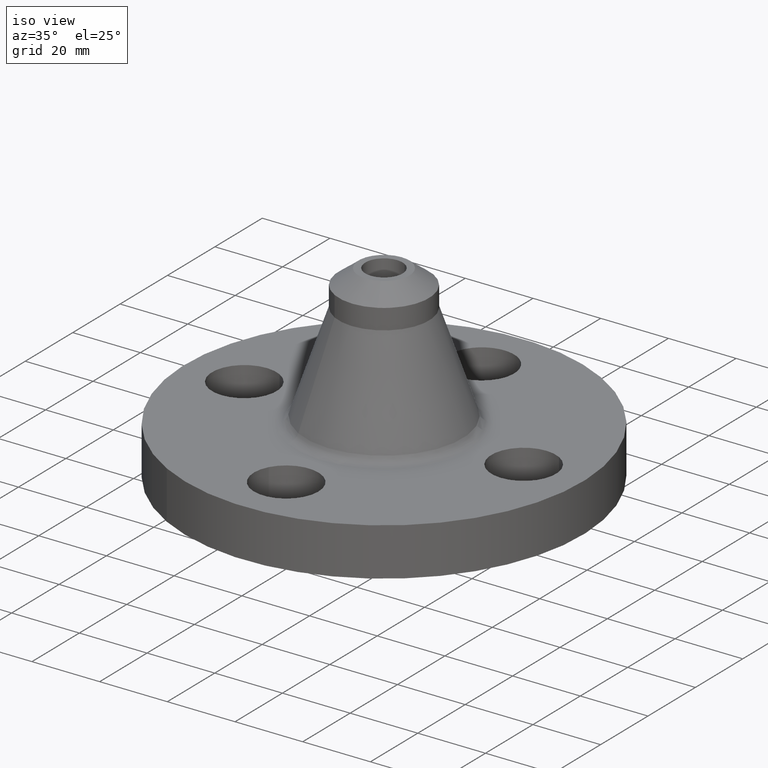
[diagram: clean part render]
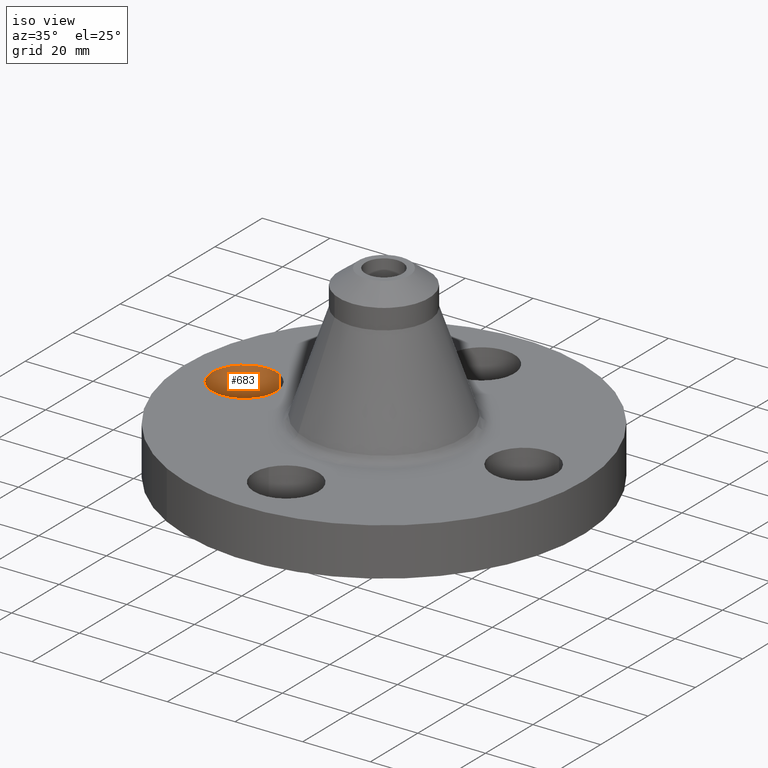
[diagram: same view with one face highlighted and labeled with its STEP entity id]
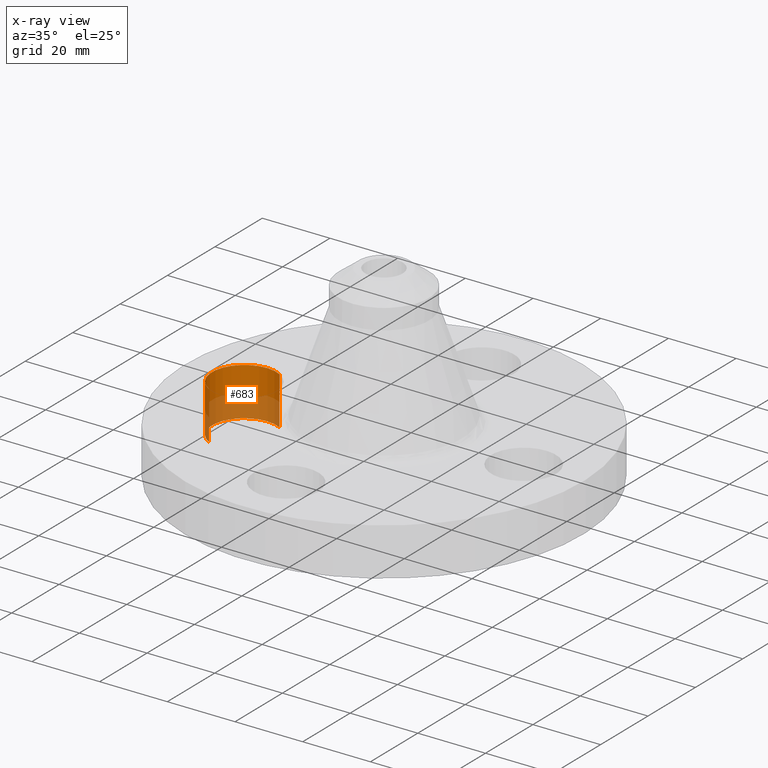
[diagram: x-ray of the same camera — body ghosted, the highlighted face saturated]
A machine part, iso view. The second image highlights one B-rep face of the part: STEP entity #683.
The next image is the same camera in x-ray: the body ghosted, the highlighted face saturated — about 43% of this face is hidden behind the body in this view.
In plain terms, the highlighted cylindrical surface (partial cylindrical patch) has radius 9.525 mm, axis along (0, 0, -1).
Its self-contained STEP definition (entity closure, byte-faithful):
#242=AXIS2_PLACEMENT_3D('Circle Axis2P3D',#240,#241,$) ;
#385=AXIS2_PLACEMENT_3D('Circle Axis2P3D',#383,#384,$) ;
#675=AXIS2_PLACEMENT_3D('Cylinder Axis2P3D',#672,#673,#674) ;
#237=CARTESIAN_POINT('Vertex',(-1.44521542304,0.329093460708,0.)) ;
#240=CARTESIAN_POINT('Axis2P3D Location',(-1.62500000001,1.00000497821E-011,0.)) ;
#244=CARTESIAN_POINT('Vertex',(-1.80478457699,-0.329093460688,0.)) ;
#378=CARTESIAN_POINT('Vertex',(-1.44521542304,0.329093460685,0.560000000002)) ;
#380=CARTESIAN_POINT('Vertex',(-1.80478457699,-0.32909346071,0.559999999987)) ;
#383=CARTESIAN_POINT('Axis2P3D Location',(-1.62500000001,-1.287956618E-011,0.560000000002)) ;
#647=CARTESIAN_POINT('Line Origine',(-1.44521542303,0.32909346071,0.279999999998)) ;
#652=CARTESIAN_POINT('Line Origine',(-1.80478457699,-0.32909346071,0.279999999998)) ;
#672=CARTESIAN_POINT('Axis2P3D Location',(-1.62500000001,-2.98507657293E-016,0.556062992128)) ;
#241=DIRECTION('Axis2P3D Direction',(0.,0.,-0.0393700787402)) ;
#384=DIRECTION('Axis2P3D Direction',(0.,0.,-0.0393700787402)) ;
#648=DIRECTION('Vector Direction',(0.,0.,-0.0393700787402)) ;
#653=DIRECTION('Vector Direction',(0.,0.,-0.0393700787402)) ;
#673=DIRECTION('Axis2P3D Direction',(0.,0.,-0.0393700787402)) ;
#674=DIRECTION('Axis2P3D XDirection',(-0.0188750212049,-0.0345504945626,0.)) ;
#649=VECTOR('Line Direction',#648,0.0393700787402) ;
#654=VECTOR('Line Direction',#653,0.0393700787402) ;
#678=ORIENTED_EDGE('',*,*,#656,.F.) ;
#679=ORIENTED_EDGE('',*,*,#246,.T.) ;
#680=ORIENTED_EDGE('',*,*,#651,.T.) ;
#681=ORIENTED_EDGE('',*,*,#387,.F.) ;
#683=ADVANCED_FACE('PartBody',(#682),#676,.F.) ;
#243=CIRCLE('generated circle',#242,0.374999999988) ;
#386=CIRCLE('generated circle',#385,0.374999999988) ;
#676=CYLINDRICAL_SURFACE('generated cylinder',#675,0.375000000001) ;
#246=EDGE_CURVE('',#245,#238,#243,.T.) ;
#387=EDGE_CURVE('',#381,#379,#386,.T.) ;
#651=EDGE_CURVE('',#238,#379,#650,.F.) ;
#656=EDGE_CURVE('',#245,#381,#655,.F.) ;
#677=EDGE_LOOP('',(#678,#679,#680,#681)) ;
#682=FACE_OUTER_BOUND('',#677,.T.) ;
#650=LINE('Line',#647,#649) ;
#655=LINE('Line',#652,#654) ;
#238=VERTEX_POINT('',#237) ;
#245=VERTEX_POINT('',#244) ;
#379=VERTEX_POINT('',#378) ;
#381=VERTEX_POINT('',#380) ;